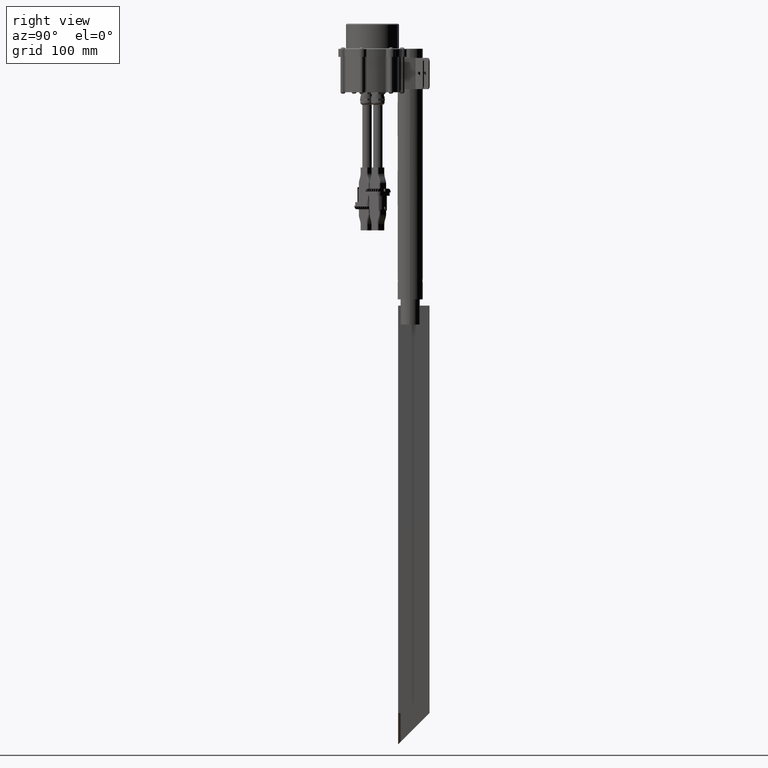
[diagram: clean part render]
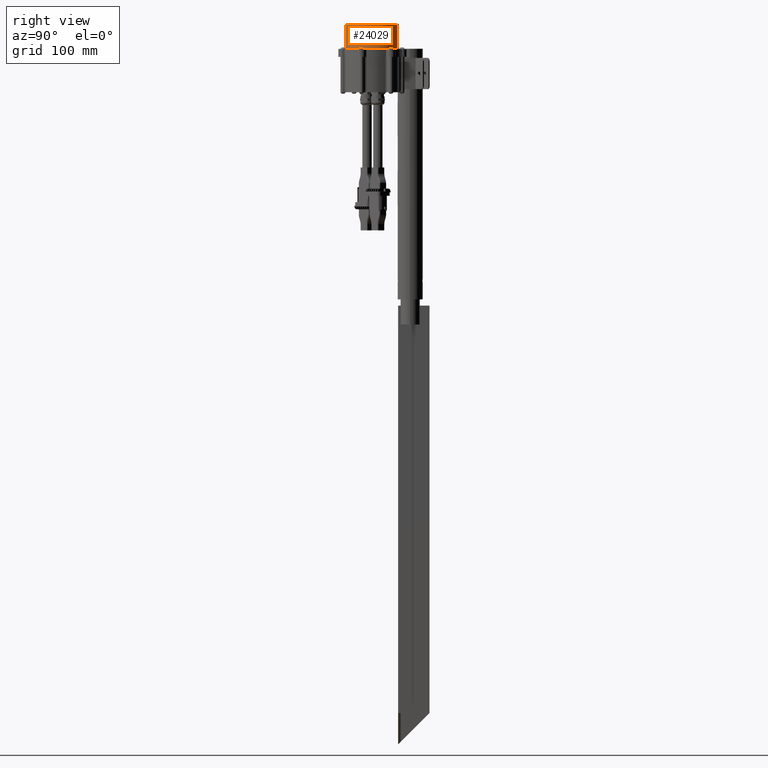
[diagram: same view with one face highlighted and labeled with its STEP entity id]
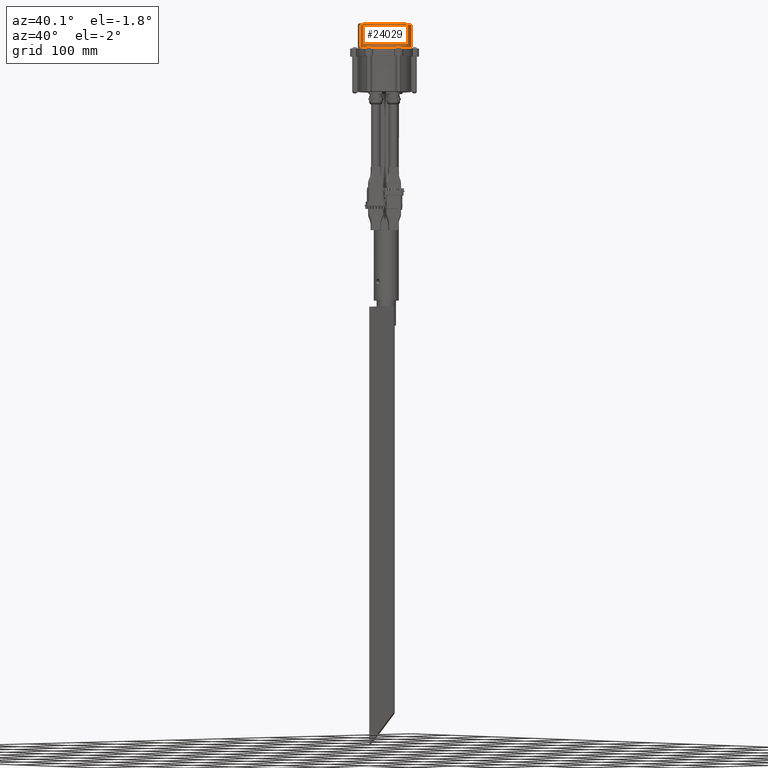
[diagram: same view with one face highlighted and labeled with its STEP entity id]
A machine part, right view. The second image highlights one B-rep face of the part: STEP entity #24029.
A second angle (auxiliary view) of the same face is appended — the face is thin or edge-on in the first view.
In plain terms, the highlighted cylindrical surface (edge-blend (fillet) strip) has radius 42.5 mm, axis along (-0, -0, -1).
Its self-contained STEP definition (entity closure, byte-faithful):
#2676 = VERTEX_POINT ( 'NONE', #4939 ) ;
#2810 = VERTEX_POINT ( 'NONE', #26316 ) ;
#3913 = EDGE_CURVE ( 'NONE', #16976, #2810, #25852, .T. ) ;
#4805 = CARTESIAN_POINT ( 'NONE',  ( 42.49999999999970200, -1.210511725580065700E-012, -41.00000000000000000 ) ) ;
#4939 = CARTESIAN_POINT ( 'NONE',  ( -42.50000000000031300, -1.205306976683689500E-012, -3.999999999999996400 ) ) ;
#5907 = DIRECTION ( 'NONE',  ( -0.0000000000000000000, -0.0000000000000000000, 1.000000000000000000 ) ) ;
#8600 = VECTOR ( 'NONE', #5907, 1000.000000000000000 ) ;
#8958 = VERTEX_POINT ( 'NONE', #37005 ) ;
#9716 = EDGE_CURVE ( 'NONE', #8958, #16976, #30956, .T. ) ;
#9886 = CARTESIAN_POINT ( 'NONE',  ( 42.49999999999970200, -1.210511725580065700E-012, -40.00000000000000000 ) ) ;
#10262 = DIRECTION ( 'NONE',  ( -0.0000000000000000000, -0.0000000000000000000, 1.000000000000000000 ) ) ;
#12486 = AXIS2_PLACEMENT_3D ( 'NONE', #22356, #31187, #37106 ) ;
#13161 = ORIENTED_EDGE ( 'NONE', *, *, #3913, .T. ) ;
#15329 = FACE_OUTER_BOUND ( 'NONE', #18149, .T. ) ;
#15825 = EDGE_CURVE ( 'NONE', #8958, #2676, #30201, .T. ) ;
#15867 = ORIENTED_EDGE ( 'NONE', *, *, #9716, .T. ) ;
#16962 = DIRECTION ( 'NONE',  ( -0.0000000000000000000, -0.0000000000000000000, -1.000000000000000000 ) ) ;
#16976 = VERTEX_POINT ( 'NONE', #4805 ) ;
#18042 = VECTOR ( 'NONE', #30598, 1000.000000000000000 ) ;
#18149 = EDGE_LOOP ( 'NONE', ( #35813, #15867, #13161, #35034 ) ) ;
#21305 = CYLINDRICAL_SURFACE ( 'NONE', #12486, 42.50000000000000700 ) ;
#22356 = CARTESIAN_POINT ( 'NONE',  ( -3.046066003598024700E-013, -1.210511725580065700E-012, -40.00000000000000000 ) ) ;
#23535 = CARTESIAN_POINT ( 'NONE',  ( -42.50000000000031300, -1.205306976683689500E-012, -40.00000000000000000 ) ) ;
#23684 = AXIS2_PLACEMENT_3D ( 'NONE', #27919, #10262, #30840 ) ;
#24029 = ADVANCED_FACE ( 'NONE', ( #15329 ), #21305, .T. ) ;
#25852 = LINE ( 'NONE', #9886, #18042 ) ;
#26316 = CARTESIAN_POINT ( 'NONE',  ( 42.49999999999970200, -1.210511725580065700E-012, -3.999999999999996400 ) ) ;
#27919 = CARTESIAN_POINT ( 'NONE',  ( -3.046066003598024700E-013, -1.210511725580065700E-012, -41.00000000000000000 ) ) ;
#30201 = LINE ( 'NONE', #23535, #8600 ) ;
#30598 = DIRECTION ( 'NONE',  ( -0.0000000000000000000, -0.0000000000000000000, 1.000000000000000000 ) ) ;
#30840 = DIRECTION ( 'NONE',  ( -1.000000000000000000, 0.0000000000000000000, 0.0000000000000000000 ) ) ;
#30956 = CIRCLE ( 'NONE', #23684, 42.50000000000000700 ) ;
#31032 = CIRCLE ( 'NONE', #31603, 42.50000000000000700 ) ;
#31187 = DIRECTION ( 'NONE',  ( -0.0000000000000000000, -0.0000000000000000000, 1.000000000000000000 ) ) ;
#31603 = AXIS2_PLACEMENT_3D ( 'NONE', #34556, #16962, #37507 ) ;
#34556 = CARTESIAN_POINT ( 'NONE',  ( -3.046066003598024700E-013, -1.210511725580065700E-012, -3.999999999999996400 ) ) ;
#35034 = ORIENTED_EDGE ( 'NONE', *, *, #36767, .T. ) ;
#35813 = ORIENTED_EDGE ( 'NONE', *, *, #15825, .F. ) ;
#36767 = EDGE_CURVE ( 'NONE', #2810, #2676, #31032, .T. ) ;
#37005 = CARTESIAN_POINT ( 'NONE',  ( -42.50000000000031300, -1.205306976683689500E-012, -41.00000000000000000 ) ) ;
#37106 = DIRECTION ( 'NONE',  ( 1.000000000000000000, 0.0000000000000000000, 0.0000000000000000000 ) ) ;
#37507 = DIRECTION ( 'NONE',  ( 1.000000000000000000, 0.0000000000000000000, 0.0000000000000000000 ) ) ;